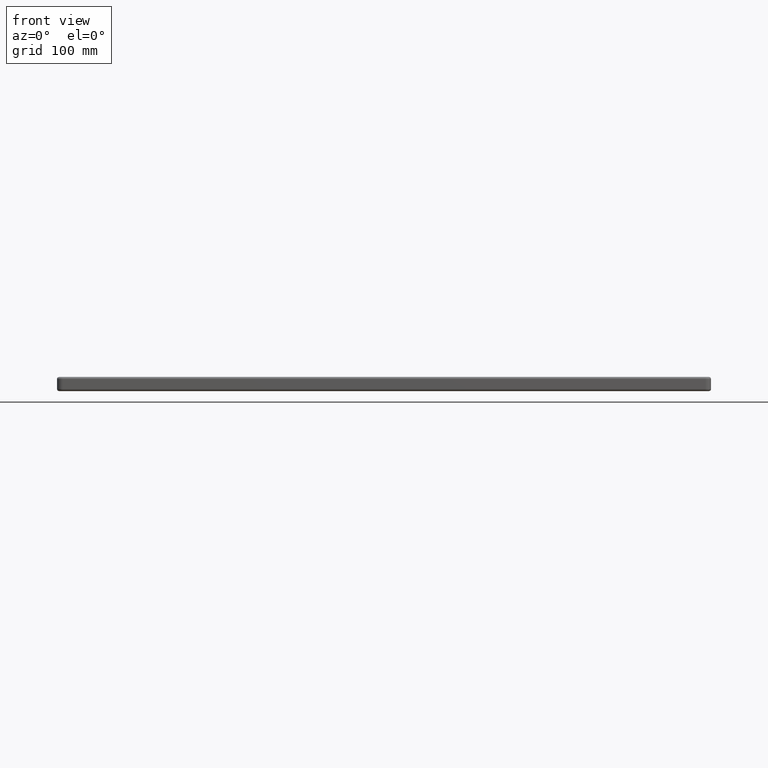
[diagram: clean part render]
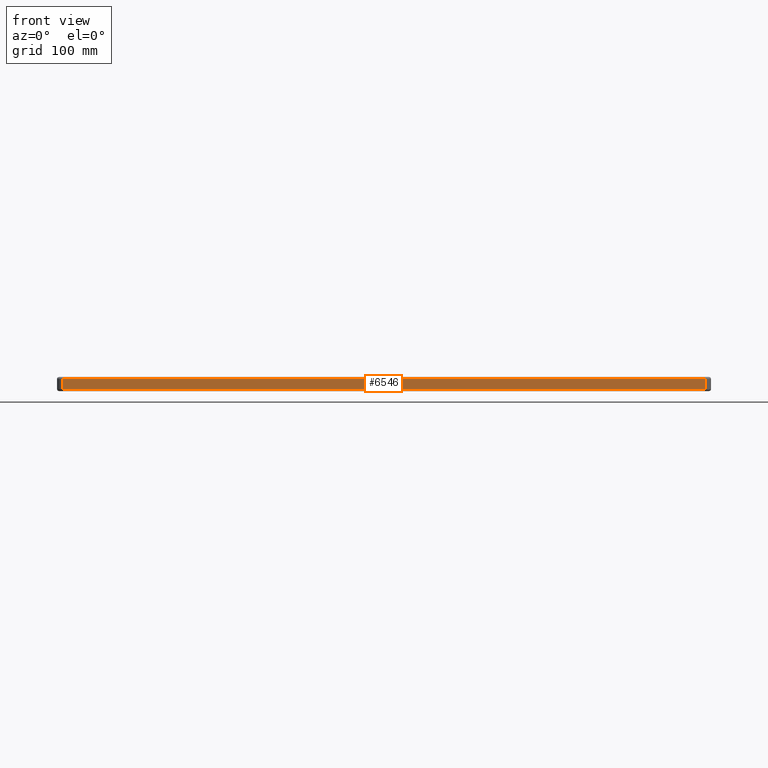
[diagram: same view with one face highlighted and labeled with its STEP entity id]
A machine part, front view. The second image highlights one B-rep face of the part: STEP entity #6546.
In plain terms, the highlighted planar face has unit normal (0, -1, 0).
Its self-contained STEP definition (entity closure, byte-faithful):
#476 = CARTESIAN_POINT ( 'NONE',  ( 594.9999999999998900, 0.0000000000000000000, -11.00000000000000000 ) ) ;
#970 = DIRECTION ( 'NONE',  ( -0.0000000000000000000, 0.0000000000000000000, 1.000000000000000000 ) ) ;
#1276 = ORIENTED_EDGE ( 'NONE', *, *, #10611, .T. ) ;
#1346 = EDGE_LOOP ( 'NONE', ( #5344, #1276, #18256, #18355 ) ) ;
#1792 = EDGE_CURVE ( 'NONE', #14062, #15619, #8945, .T. ) ;
#2232 = DIRECTION ( 'NONE',  ( -1.000000000000000000, -0.0000000000000000000, 0.0000000000000000000 ) ) ;
#3431 = VECTOR ( 'NONE', #2232, 1000.000000000000000 ) ;
#4909 = LINE ( 'NONE', #10261, #3431 ) ;
#5344 = ORIENTED_EDGE ( 'NONE', *, *, #1792, .T. ) ;
#5546 = LINE ( 'NONE', #14663, #9180 ) ;
#5683 = PLANE ( 'NONE',  #14729 ) ;
#6546 = ADVANCED_FACE ( 'NONE', ( #10066 ), #5683, .T. ) ;
#8803 = DIRECTION ( 'NONE',  ( 0.0000000000000000000, -1.000000000000000000, 0.0000000000000000000 ) ) ;
#8807 = EDGE_CURVE ( 'NONE', #9955, #17479, #9765, .T. ) ;
#8945 = LINE ( 'NONE', #12215, #11671 ) ;
#9180 = VECTOR ( 'NONE', #14515, 1000.000000000000000 ) ;
#9765 = LINE ( 'NONE', #12106, #17650 ) ;
#9955 = VERTEX_POINT ( 'NONE', #476 ) ;
#10066 = FACE_OUTER_BOUND ( 'NONE', #1346, .T. ) ;
#10261 = CARTESIAN_POINT ( 'NONE',  ( 4.999999999999999100, 0.0000000000000000000, -2.000000000000000000 ) ) ;
#10611 = EDGE_CURVE ( 'NONE', #15619, #9955, #5546, .T. ) ;
#11671 = VECTOR ( 'NONE', #16752, 1000.000000000000000 ) ;
#12106 = CARTESIAN_POINT ( 'NONE',  ( 594.9999999999998900, 0.0000000000000000000, -13.00000000000000000 ) ) ;
#12215 = CARTESIAN_POINT ( 'NONE',  ( 4.999999999999999100, 0.0000000000000000000, -13.00000000000000000 ) ) ;
#13976 = CARTESIAN_POINT ( 'NONE',  ( 4.999999999999999100, 0.0000000000000000000, -2.000000000000000000 ) ) ;
#14062 = VERTEX_POINT ( 'NONE', #13976 ) ;
#14515 = DIRECTION ( 'NONE',  ( 1.000000000000000000, 0.0000000000000000000, 0.0000000000000000000 ) ) ;
#14663 = CARTESIAN_POINT ( 'NONE',  ( 0.0000000000000000000, 0.0000000000000000000, -11.00000000000000000 ) ) ;
#14729 = AXIS2_PLACEMENT_3D ( 'NONE', #16652, #8803, #19853 ) ;
#14731 = CARTESIAN_POINT ( 'NONE',  ( 594.9999999999998900, 0.0000000000000000000, -2.000000000000000000 ) ) ;
#15619 = VERTEX_POINT ( 'NONE', #17678 ) ;
#16652 = CARTESIAN_POINT ( 'NONE',  ( 0.0000000000000000000, 0.0000000000000000000, -13.00000000000000000 ) ) ;
#16752 = DIRECTION ( 'NONE',  ( -0.0000000000000000000, -0.0000000000000000000, -1.000000000000000000 ) ) ;
#16905 = EDGE_CURVE ( 'NONE', #17479, #14062, #4909, .T. ) ;
#17479 = VERTEX_POINT ( 'NONE', #14731 ) ;
#17650 = VECTOR ( 'NONE', #970, 1000.000000000000000 ) ;
#17678 = CARTESIAN_POINT ( 'NONE',  ( 4.999999999999999100, 0.0000000000000000000, -11.00000000000000000 ) ) ;
#18256 = ORIENTED_EDGE ( 'NONE', *, *, #8807, .T. ) ;
#18355 = ORIENTED_EDGE ( 'NONE', *, *, #16905, .T. ) ;
#19853 = DIRECTION ( 'NONE',  ( 0.0000000000000000000, -0.0000000000000000000, -1.000000000000000000 ) ) ;